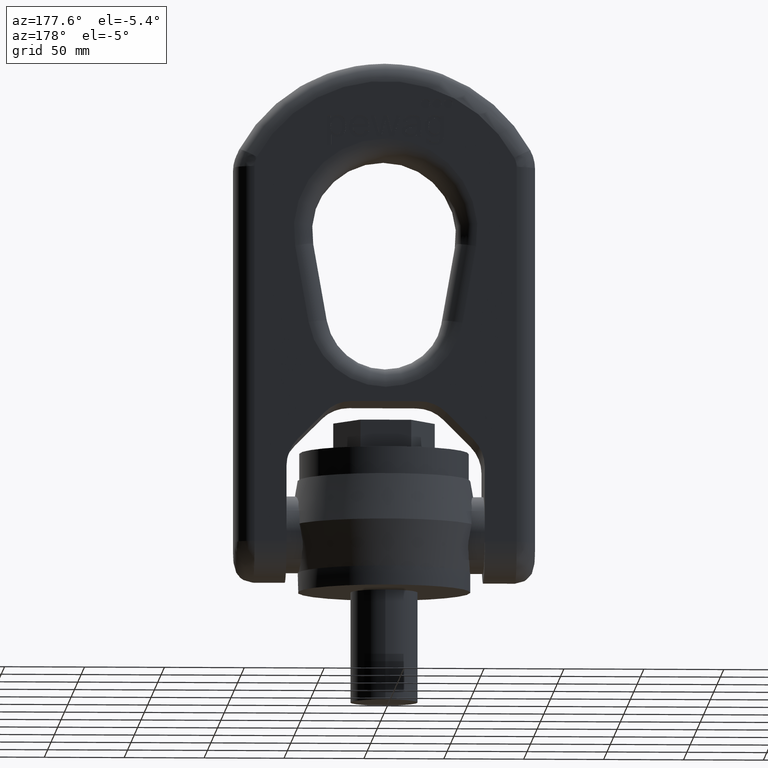
[diagram: clean part render]
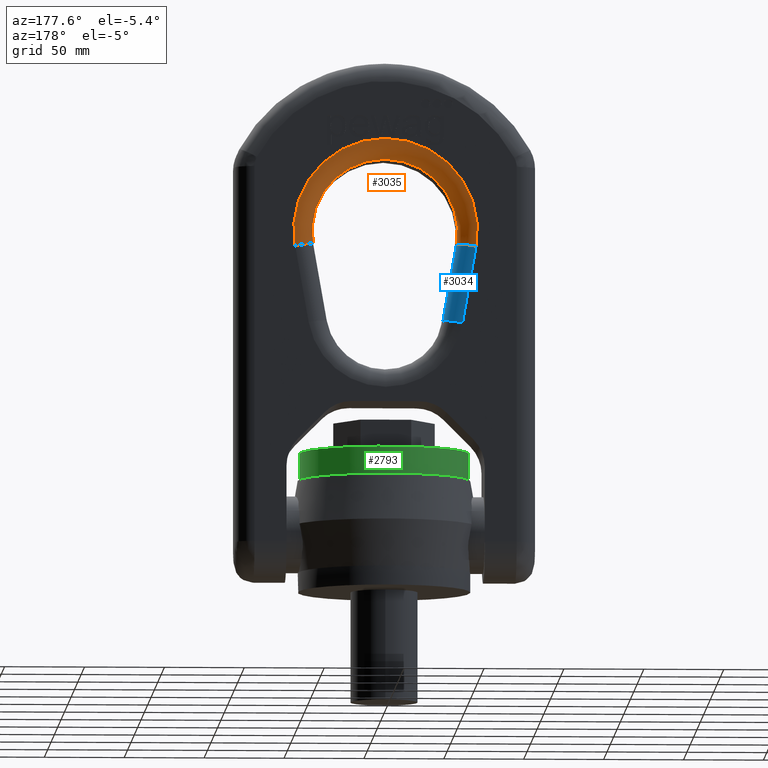
[diagram: same view with three faces highlighted in distinct colors, each labeled with its STEP entity id]
A machine part, auxiliary view with three faces highlighted in distinct colors.
Their STEP definitions:

[orange] entity #3035 — the highlighted toroidal blend (fillet) surface has major radius 57.5 mm and minor (blend) radius 12 mm.
#204=TOROIDAL_SURFACE('',#6055,57.5,12.);
#2660=FACE_OUTER_BOUND('',#3428,.T.);
#3035=ADVANCED_FACE('',(#2660),#204,.T.);
#3428=EDGE_LOOP('',(#4677,#4678,#4679,#4680));
#4677=ORIENTED_EDGE('',*,*,#5743,.T.);
#4678=ORIENTED_EDGE('',*,*,#5354,.F.);
#4679=ORIENTED_EDGE('',*,*,#5744,.T.);
#4680=ORIENTED_EDGE('',*,*,#5264,.F.);
#4828=VERTEX_POINT('',#7397);
#4829=VERTEX_POINT('',#7399);
#4913=VERTEX_POINT('',#7725);
#4915=VERTEX_POINT('',#7731);
#5264=EDGE_CURVE('',#4828,#4829,#5775,.T.);
#5354=EDGE_CURVE('',#4913,#4915,#5787,.T.);
#5743=EDGE_CURVE('',#4828,#4915,#5821,.T.);
#5744=EDGE_CURVE('',#4913,#4829,#5822,.T.);
#5775=CIRCLE('',#5882,57.5);
#5787=CIRCLE('',#5896,45.5);
#5821=CIRCLE('',#6051,12.);
#5822=CIRCLE('',#6053,12.);
#5882=AXIS2_PLACEMENT_3D('',#7398,#6261,#6262);
#5896=AXIS2_PLACEMENT_3D('',#7730,#6333,#6334);
#6051=AXIS2_PLACEMENT_3D('',#9832,#6910,#6911);
#6053=AXIS2_PLACEMENT_3D('',#9834,#6914,#6915);
#6055=AXIS2_PLACEMENT_3D('',#9836,#6918,#6919);
#6261=DIRECTION('',(-2.34291072916505E-15,-1.,0.));
#6262=DIRECTION('',(-1.,2.35319010654245E-15,0.));
#6333=DIRECTION('',(2.34291072916505E-15,1.,0.));
#6334=DIRECTION('',(-1.,2.32567323152935E-15,0.));
#6910=DIRECTION('',(0.173648177666928,-4.01642093812549E-16,0.984807753012208));
#6911=DIRECTION('',(0.984807753012208,0.,-0.173648177666928));
#6914=DIRECTION('',(-0.173648177666931,-1.87618341081977E-15,0.984807753012208));
#6915=DIRECTION('',(0.984807753012208,0.,0.173648177666931));
#6918=DIRECTION('',(2.34291072916505E-15,1.,0.));
#6919=DIRECTION('',(-1.,2.34624470132115E-15,0.));
#7397=CARTESIAN_POINT('',(56.626445798202,23.9999999999999,215.515229784152));
#7398=CARTESIAN_POINT('',(2.81149287499806E-14,24.,225.5));
#7399=CARTESIAN_POINT('',(-56.626445798202,24.0000000000001,215.515229784152));
#7725=CARTESIAN_POINT('',(-44.8087527620555,12.0000000000001,217.599007916155));
#7730=CARTESIAN_POINT('',(0.,12.,225.5));
#7731=CARTESIAN_POINT('',(44.8087527620555,11.9999999999999,217.599007916155));
#9832=CARTESIAN_POINT('',(56.626445798202,11.9999999999999,215.515229784152));
#9834=CARTESIAN_POINT('',(-56.626445798202,12.0000000000001,215.515229784152));
#9836=CARTESIAN_POINT('',(0.,12.,225.5));

[blue] entity #3034 — the highlighted cylindrical surface (edge-blend (fillet) strip) has radius 12 mm, axis along (-0.1736, 0, 0.9848).
#1816=LINE('',#7400,#2124);
#1857=LINE('',#7724,#2165);
#2124=VECTOR('',#6263,1.);
#2165=VECTOR('',#6328,1.);
#2659=FACE_OUTER_BOUND('',#3427,.T.);
#3034=ADVANCED_FACE('',(#2659),#3066,.T.);
#3066=CYLINDRICAL_SURFACE('',#6054,12.);
#3427=EDGE_LOOP('',(#4673,#4674,#4675,#4676));
#4673=ORIENTED_EDGE('',*,*,#5741,.T.);
#4674=ORIENTED_EDGE('',*,*,#5265,.F.);
#4675=ORIENTED_EDGE('',*,*,#5744,.F.);
#4676=ORIENTED_EDGE('',*,*,#5351,.F.);
#4829=VERTEX_POINT('',#7399);
#4830=VERTEX_POINT('',#7401);
#4912=VERTEX_POINT('',#7723);
#4913=VERTEX_POINT('',#7725);
#5265=EDGE_CURVE('',#4829,#4830,#1816,.T.);
#5351=EDGE_CURVE('',#4912,#4913,#1857,.T.);
#5741=EDGE_CURVE('',#4912,#4830,#5819,.T.);
#5744=EDGE_CURVE('',#4913,#4829,#5822,.T.);
#5819=CIRCLE('',#6048,12.);
#5822=CIRCLE('',#6053,12.);
#6048=AXIS2_PLACEMENT_3D('',#9829,#6904,#6905);
#6053=AXIS2_PLACEMENT_3D('',#9834,#6914,#6915);
#6054=AXIS2_PLACEMENT_3D('',#9835,#6916,#6917);
#6263=DIRECTION('',(0.173648177666931,-4.0684217855581E-16,-0.984807753012208));
#6328=DIRECTION('',(-0.173648177666931,4.0684217855581E-16,0.984807753012208));
#6904=DIRECTION('',(-0.173648177666931,5.02052617265693E-16,0.984807753012208));
#6905=DIRECTION('',(0.984807753012208,0.,0.173648177666931));
#6914=DIRECTION('',(-0.173648177666931,-1.87618341081977E-15,0.984807753012208));
#6915=DIRECTION('',(0.984807753012208,0.,0.173648177666931));
#6916=DIRECTION('',(-0.173648177666931,4.0684217855581E-16,0.984807753012208));
#6917=DIRECTION('',(0.984807753012208,0.,0.173648177666931));
#7399=CARTESIAN_POINT('',(-56.626445798202,24.0000000000001,215.515229784152));
#7400=CARTESIAN_POINT('',(-48.1416663753398,24.0000000000001,167.395654499807));
#7401=CARTESIAN_POINT('',(-48.1416663753399,24.0000000000001,167.395654499807));
#7723=CARTESIAN_POINT('',(-36.3239733391934,12.0000000000001,169.47943263181));
#7724=CARTESIAN_POINT('',(-44.8087527620555,12.0000000000001,217.599007916155));
#7725=CARTESIAN_POINT('',(-44.8087527620555,12.0000000000001,217.599007916155));
#9829=CARTESIAN_POINT('',(-48.1416663753399,12.0000000000001,167.395654499807));
#9834=CARTESIAN_POINT('',(-56.626445798202,12.0000000000001,215.515229784152));
#9835=CARTESIAN_POINT('',(-56.9456645986393,12.0000000000001,217.325609563552));

[green] entity #2793 — the highlighted cylindrical surface (bore or boss wall) has radius 53 mm, axis along (0, 0, -1).
#2793=ADVANCED_FACE('',(#3081,#3082),#3042,.T.);
#3042=CYLINDRICAL_SURFACE('',#5843,53.);
#3081=FACE_BOUND('',#3150,.T.);
#3082=FACE_BOUND('',#3151,.T.);
#3150=EDGE_LOOP('',(#3446));
#3151=EDGE_LOOP('',(#3447));
#3446=ORIENTED_EDGE('',*,*,#5124,.T.);
#3447=ORIENTED_EDGE('',*,*,#5123,.F.);
#4703=VERTEX_POINT('',#6956);
#4704=VERTEX_POINT('',#6959);
#5123=EDGE_CURVE('',#4703,#4703,#5755,.T.);
#5124=EDGE_CURVE('',#4704,#4704,#5756,.T.);
#5755=CIRCLE('',#5840,53.);
#5756=CIRCLE('',#5842,53.);
#5840=AXIS2_PLACEMENT_3D('',#6955,#6090,#6091);
#5842=AXIS2_PLACEMENT_3D('',#6958,#6094,#6095);
#5843=AXIS2_PLACEMENT_3D('',#6960,#6096,#6097);
#6090=DIRECTION('',(0.,0.,-1.));
#6091=DIRECTION('',(-1.,0.,0.));
#6094=DIRECTION('',(0.,0.,-1.));
#6095=DIRECTION('',(-1.,0.,0.));
#6096=DIRECTION('',(0.,0.,-1.));
#6097=DIRECTION('',(-1.,0.,0.));
#6955=CARTESIAN_POINT('',(0.,0.,70.));
#6956=CARTESIAN_POINT('',(-53.,0.,70.));
#6958=CARTESIAN_POINT('',(0.,0.,87.));
#6959=CARTESIAN_POINT('',(-53.,0.,87.));
#6960=CARTESIAN_POINT('',(0.,0.,0.));